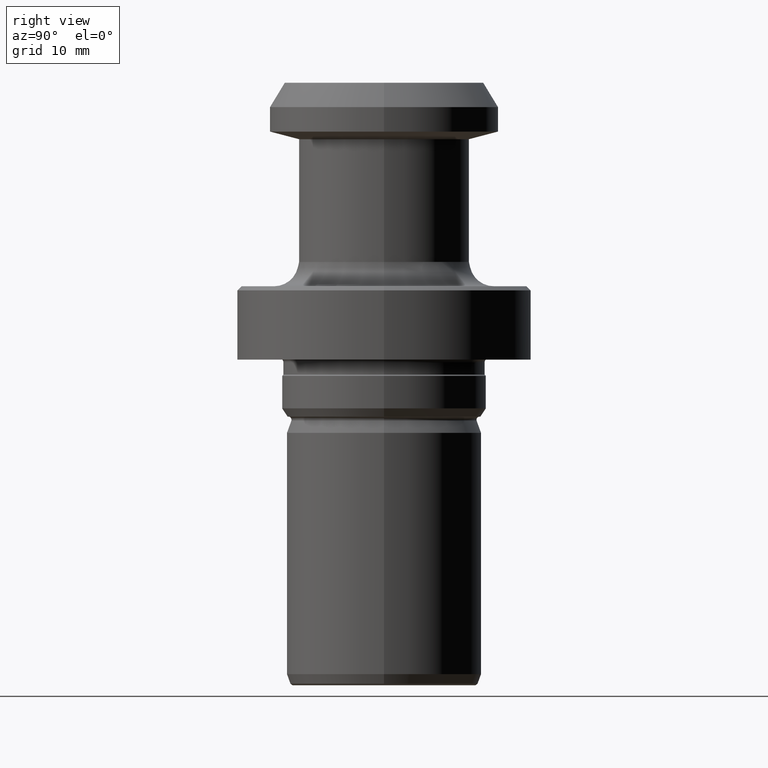
[diagram: clean part render]
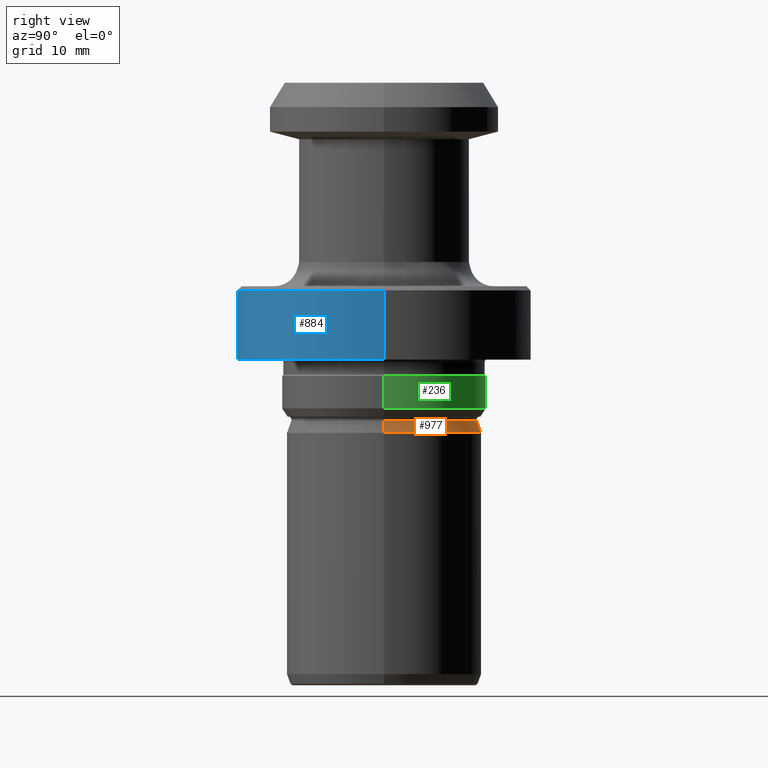
[diagram: same view with three faces highlighted in distinct colors, each labeled with its STEP entity id]
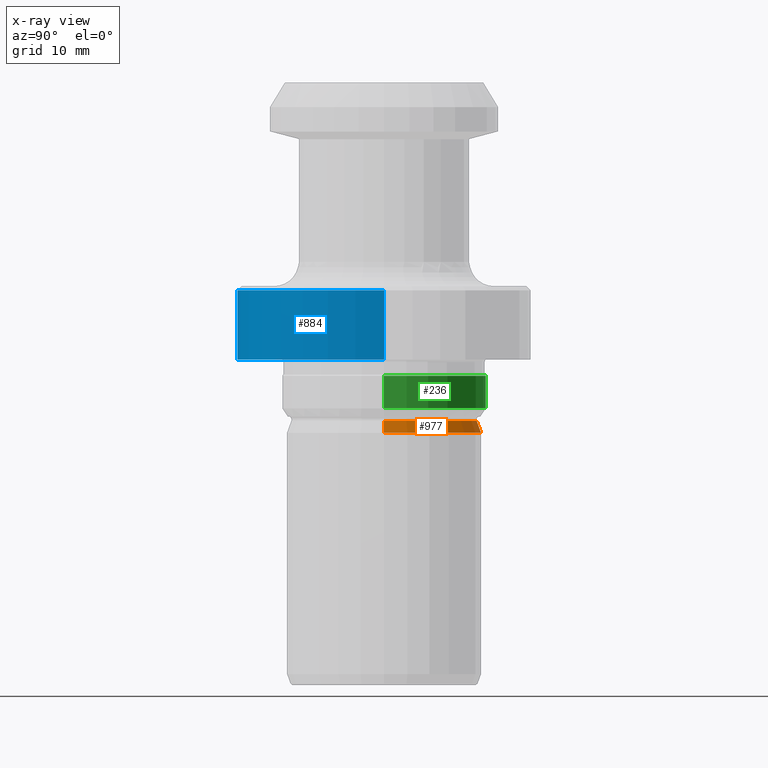
[diagram: x-ray of the same camera — body ghosted, the three highlighted faces saturated]
A machine part, right view with three faces highlighted in distinct colors.
The next image is the same camera in x-ray (body ghosted, the three faces saturated) — at least one of them is partly hidden behind the body in this view.
Their STEP definitions:

[orange] entity #977 — the highlighted conical surface has half-angle 20 deg.
#25 = DIRECTION ( 'NONE',  ( -0.3420201433256677700, 0.0000000000000000000, -0.9396926207859087600 ) ) ;
#91 = FACE_OUTER_BOUND ( 'NONE', #388, .T. ) ;
#94 = EDGE_CURVE ( 'NONE', #346, #913, #228, .T. ) ;
#113 = DIRECTION ( 'NONE',  ( -1.000000000000000000, 0.0000000000000000000, 0.0000000000000000000 ) ) ;
#142 = EDGE_CURVE ( 'NONE', #1166, #593, #412, .T. ) ;
#194 = EDGE_CURVE ( 'NONE', #1166, #346, #1064, .T. ) ;
#206 = DIRECTION ( 'NONE',  ( 1.000000000000000000, 0.0000000000000000000, 0.0000000000000000000 ) ) ;
#221 = EDGE_CURVE ( 'NONE', #593, #913, #1127, .T. ) ;
#228 = CIRCLE ( 'NONE', #759, 12.00000000000000000 ) ;
#298 = CARTESIAN_POINT ( 'NONE',  ( 0.0000000000000000000, 0.0000000000000000000, -43.00000000000000000 ) ) ;
#301 = DIRECTION ( 'NONE',  ( 0.3420201433256677700, 4.188538737676980100E-017, -0.9396926207859087600 ) ) ;
#306 = CARTESIAN_POINT ( 'NONE',  ( -12.00000000000000000, 0.0000000000000000000, -43.00000000000000000 ) ) ;
#310 = DIRECTION ( 'NONE',  ( 1.000000000000000000, 0.0000000000000000000, 0.0000000000000000000 ) ) ;
#346 = VERTEX_POINT ( 'NONE', #1014 ) ;
#374 = DIRECTION ( 'NONE',  ( -0.0000000000000000000, -0.0000000000000000000, 1.000000000000000000 ) ) ;
#388 = EDGE_LOOP ( 'NONE', ( #1096, #668, #500, #514 ) ) ;
#412 = CIRCLE ( 'NONE', #574, 11.46744168585007800 ) ;
#457 = CARTESIAN_POINT ( 'NONE',  ( 11.46744168585007800, 1.436966367237673200E-015, -41.53680805733026900 ) ) ;
#460 = CARTESIAN_POINT ( 'NONE',  ( -12.00000000000000000, 1.469576158976823900E-015, -43.00000000000000000 ) ) ;
#500 = ORIENTED_EDGE ( 'NONE', *, *, #94, .T. ) ;
#514 = ORIENTED_EDGE ( 'NONE', *, *, #221, .F. ) ;
#533 = CONICAL_SURFACE ( 'NONE', #582, 12.00000000000000000, 0.3490658503988649000 ) ;
#564 = DIRECTION ( 'NONE',  ( 0.0000000000000000000, 0.0000000000000000000, -1.000000000000000000 ) ) ;
#574 = AXIS2_PLACEMENT_3D ( 'NONE', #929, #1031, #310 ) ;
#582 = AXIS2_PLACEMENT_3D ( 'NONE', #1092, #564, #113 ) ;
#593 = VERTEX_POINT ( 'NONE', #605 ) ;
#599 = VECTOR ( 'NONE', #301, 1000.000000000000000 ) ;
#605 = CARTESIAN_POINT ( 'NONE',  ( -11.46744168585007800, 0.0000000000000000000, -41.53680805733026900 ) ) ;
#668 = ORIENTED_EDGE ( 'NONE', *, *, #194, .T. ) ;
#742 = CARTESIAN_POINT ( 'NONE',  ( 12.00000000000000000, 1.469576158976823900E-015, -43.00000000000000000 ) ) ;
#759 = AXIS2_PLACEMENT_3D ( 'NONE', #298, #374, #206 ) ;
#873 = VECTOR ( 'NONE', #25, 1000.000000000000000 ) ;
#913 = VERTEX_POINT ( 'NONE', #460 ) ;
#929 = CARTESIAN_POINT ( 'NONE',  ( 0.0000000000000000000, 0.0000000000000000000, -41.53680805733026900 ) ) ;
#977 = ADVANCED_FACE ( 'NONE', ( #91 ), #533, .T. ) ;
#1014 = CARTESIAN_POINT ( 'NONE',  ( 12.00000000000000000, 0.0000000000000000000, -43.00000000000000000 ) ) ;
#1031 = DIRECTION ( 'NONE',  ( -0.0000000000000000000, -0.0000000000000000000, 1.000000000000000000 ) ) ;
#1064 = LINE ( 'NONE', #742, #599 ) ;
#1092 = CARTESIAN_POINT ( 'NONE',  ( 0.0000000000000000000, 0.0000000000000000000, -43.00000000000000000 ) ) ;
#1096 = ORIENTED_EDGE ( 'NONE', *, *, #142, .F. ) ;
#1127 = LINE ( 'NONE', #306, #873 ) ;
#1166 = VERTEX_POINT ( 'NONE', #457 ) ;

[blue] entity #884 — the highlighted cylindrical surface (partial cylindrical patch) has radius 18 mm, axis along (-0, -0, 1).
#44 = VECTOR ( 'NONE', #577, 1000.000000000000000 ) ;
#52 = VERTEX_POINT ( 'NONE', #1099 ) ;
#83 = DIRECTION ( 'NONE',  ( 1.000000000000000000, 0.0000000000000000000, 0.0000000000000000000 ) ) ;
#99 = EDGE_LOOP ( 'NONE', ( #326, #685, #395, #233 ) ) ;
#125 = EDGE_CURVE ( 'NONE', #604, #52, #474, .T. ) ;
#175 = DIRECTION ( 'NONE',  ( -0.0000000000000000000, -0.0000000000000000000, 1.000000000000000000 ) ) ;
#182 = CIRCLE ( 'NONE', #537, 18.00000000000000000 ) ;
#197 = CARTESIAN_POINT ( 'NONE',  ( -18.00000000000000000, 2.204364238465235400E-015, -25.50000000000000000 ) ) ;
#222 = VERTEX_POINT ( 'NONE', #197 ) ;
#230 = CARTESIAN_POINT ( 'NONE',  ( -18.00000000000000000, 2.204364238465235400E-015, -34.00000000000000000 ) ) ;
#233 = ORIENTED_EDGE ( 'NONE', *, *, #1130, .F. ) ;
#245 = CYLINDRICAL_SURFACE ( 'NONE', #878, 18.00000000000000000 ) ;
#261 = CARTESIAN_POINT ( 'NONE',  ( 18.00000000000000000, 0.0000000000000000000, 0.0000000000000000000 ) ) ;
#317 = CARTESIAN_POINT ( 'NONE',  ( 18.00000000000000000, 0.0000000000000000000, -25.50000000000000000 ) ) ;
#323 = LINE ( 'NONE', #261, #44 ) ;
#326 = ORIENTED_EDGE ( 'NONE', *, *, #645, .F. ) ;
#332 = EDGE_CURVE ( 'NONE', #52, #600, #323, .T. ) ;
#364 = CARTESIAN_POINT ( 'NONE',  ( 0.0000000000000000000, 0.0000000000000000000, 0.0000000000000000000 ) ) ;
#395 = ORIENTED_EDGE ( 'NONE', *, *, #332, .T. ) ;
#397 = VECTOR ( 'NONE', #834, 1000.000000000000000 ) ;
#474 = CIRCLE ( 'NONE', #754, 18.00000000000000000 ) ;
#490 = DIRECTION ( 'NONE',  ( 1.000000000000000000, 0.0000000000000000000, 0.0000000000000000000 ) ) ;
#537 = AXIS2_PLACEMENT_3D ( 'NONE', #1169, #632, #83 ) ;
#558 = FACE_OUTER_BOUND ( 'NONE', #99, .T. ) ;
#577 = DIRECTION ( 'NONE',  ( -0.0000000000000000000, -0.0000000000000000000, 1.000000000000000000 ) ) ;
#600 = VERTEX_POINT ( 'NONE', #317 ) ;
#604 = VERTEX_POINT ( 'NONE', #230 ) ;
#632 = DIRECTION ( 'NONE',  ( -0.0000000000000000000, -0.0000000000000000000, 1.000000000000000000 ) ) ;
#645 = EDGE_CURVE ( 'NONE', #604, #222, #688, .T. ) ;
#685 = ORIENTED_EDGE ( 'NONE', *, *, #125, .T. ) ;
#688 = LINE ( 'NONE', #829, #397 ) ;
#714 = DIRECTION ( 'NONE',  ( 1.000000000000000000, 0.0000000000000000000, 0.0000000000000000000 ) ) ;
#754 = AXIS2_PLACEMENT_3D ( 'NONE', #828, #836, #490 ) ;
#828 = CARTESIAN_POINT ( 'NONE',  ( 0.0000000000000000000, 0.0000000000000000000, -34.00000000000000000 ) ) ;
#829 = CARTESIAN_POINT ( 'NONE',  ( -18.00000000000000000, 2.204364238465235400E-015, 0.0000000000000000000 ) ) ;
#834 = DIRECTION ( 'NONE',  ( -0.0000000000000000000, -0.0000000000000000000, 1.000000000000000000 ) ) ;
#836 = DIRECTION ( 'NONE',  ( -0.0000000000000000000, -0.0000000000000000000, 1.000000000000000000 ) ) ;
#878 = AXIS2_PLACEMENT_3D ( 'NONE', #364, #175, #714 ) ;
#884 = ADVANCED_FACE ( 'NONE', ( #558 ), #245, .T. ) ;
#1099 = CARTESIAN_POINT ( 'NONE',  ( 18.00000000000000000, 0.0000000000000000000, -34.00000000000000000 ) ) ;
#1130 = EDGE_CURVE ( 'NONE', #222, #600, #182, .T. ) ;
#1169 = CARTESIAN_POINT ( 'NONE',  ( 0.0000000000000000000, 0.0000000000000000000, -25.50000000000000000 ) ) ;

[green] entity #236 — the highlighted cylindrical surface (partial cylindrical patch) has radius 12.5 mm, axis along (-0, -0, 1).
#10 = EDGE_CURVE ( 'NONE', #532, #540, #611, .T. ) ;
#24 = ORIENTED_EDGE ( 'NONE', *, *, #1106, .T. ) ;
#28 = CARTESIAN_POINT ( 'NONE',  ( -12.49999999999999300, 1.530808498934190700E-015, -40.00000000000000000 ) ) ;
#40 = CARTESIAN_POINT ( 'NONE',  ( -12.50000000000000000, 1.530808498934191500E-015, -36.00000000000000700 ) ) ;
#45 = EDGE_CURVE ( 'NONE', #761, #532, #88, .T. ) ;
#72 = CARTESIAN_POINT ( 'NONE',  ( 0.0000000000000000000, 0.0000000000000000000, -40.00000000000000000 ) ) ;
#88 = LINE ( 'NONE', #659, #996 ) ;
#93 = CARTESIAN_POINT ( 'NONE',  ( 0.0000000000000000000, 0.0000000000000000000, 0.0000000000000000000 ) ) ;
#158 = VECTOR ( 'NONE', #885, 1000.000000000000000 ) ;
#165 = DIRECTION ( 'NONE',  ( 1.000000000000000000, 0.0000000000000000000, 0.0000000000000000000 ) ) ;
#187 = CARTESIAN_POINT ( 'NONE',  ( 0.0000000000000000000, 0.0000000000000000000, -36.00000000000000700 ) ) ;
#236 = ADVANCED_FACE ( 'NONE', ( #647 ), #851, .T. ) ;
#361 = CARTESIAN_POINT ( 'NONE',  ( 12.49999999999999300, 0.0000000000000000000, -40.00000000000000000 ) ) ;
#370 = DIRECTION ( 'NONE',  ( -0.0000000000000000000, -0.0000000000000000000, 1.000000000000000000 ) ) ;
#403 = VERTEX_POINT ( 'NONE', #28 ) ;
#470 = DIRECTION ( 'NONE',  ( 1.000000000000000000, 0.0000000000000000000, 0.0000000000000000000 ) ) ;
#488 = ORIENTED_EDGE ( 'NONE', *, *, #10, .F. ) ;
#516 = AXIS2_PLACEMENT_3D ( 'NONE', #93, #370, #470 ) ;
#532 = VERTEX_POINT ( 'NONE', #781 ) ;
#540 = VERTEX_POINT ( 'NONE', #40 ) ;
#611 = CIRCLE ( 'NONE', #835, 12.50000000000000000 ) ;
#625 = CARTESIAN_POINT ( 'NONE',  ( -12.49999999999999600, 1.530808498934191100E-015, 0.0000000000000000000 ) ) ;
#647 = FACE_OUTER_BOUND ( 'NONE', #959, .T. ) ;
#659 = CARTESIAN_POINT ( 'NONE',  ( 12.49999999999999600, 0.0000000000000000000, 0.0000000000000000000 ) ) ;
#679 = AXIS2_PLACEMENT_3D ( 'NONE', #72, #715, #165 ) ;
#715 = DIRECTION ( 'NONE',  ( -0.0000000000000000000, -0.0000000000000000000, 1.000000000000000000 ) ) ;
#761 = VERTEX_POINT ( 'NONE', #361 ) ;
#781 = CARTESIAN_POINT ( 'NONE',  ( 12.50000000000000000, 0.0000000000000000000, -36.00000000000000700 ) ) ;
#800 = ORIENTED_EDGE ( 'NONE', *, *, #45, .F. ) ;
#820 = DIRECTION ( 'NONE',  ( 1.000000000000000000, 0.0000000000000000000, 0.0000000000000000000 ) ) ;
#835 = AXIS2_PLACEMENT_3D ( 'NONE', #187, #1007, #820 ) ;
#851 = CYLINDRICAL_SURFACE ( 'NONE', #516, 12.49999999999999600 ) ;
#880 = CIRCLE ( 'NONE', #679, 12.49999999999999300 ) ;
#885 = DIRECTION ( 'NONE',  ( -0.0000000000000000000, -0.0000000000000000000, 1.000000000000000000 ) ) ;
#959 = EDGE_LOOP ( 'NONE', ( #1056, #24, #488, #800 ) ) ;
#996 = VECTOR ( 'NONE', #1085, 1000.000000000000000 ) ;
#1007 = DIRECTION ( 'NONE',  ( -0.0000000000000000000, -0.0000000000000000000, 1.000000000000000000 ) ) ;
#1056 = ORIENTED_EDGE ( 'NONE', *, *, #1104, .T. ) ;
#1085 = DIRECTION ( 'NONE',  ( -0.0000000000000000000, -0.0000000000000000000, 1.000000000000000000 ) ) ;
#1104 = EDGE_CURVE ( 'NONE', #761, #403, #880, .T. ) ;
#1106 = EDGE_CURVE ( 'NONE', #403, #540, #1131, .T. ) ;
#1131 = LINE ( 'NONE', #625, #158 ) ;